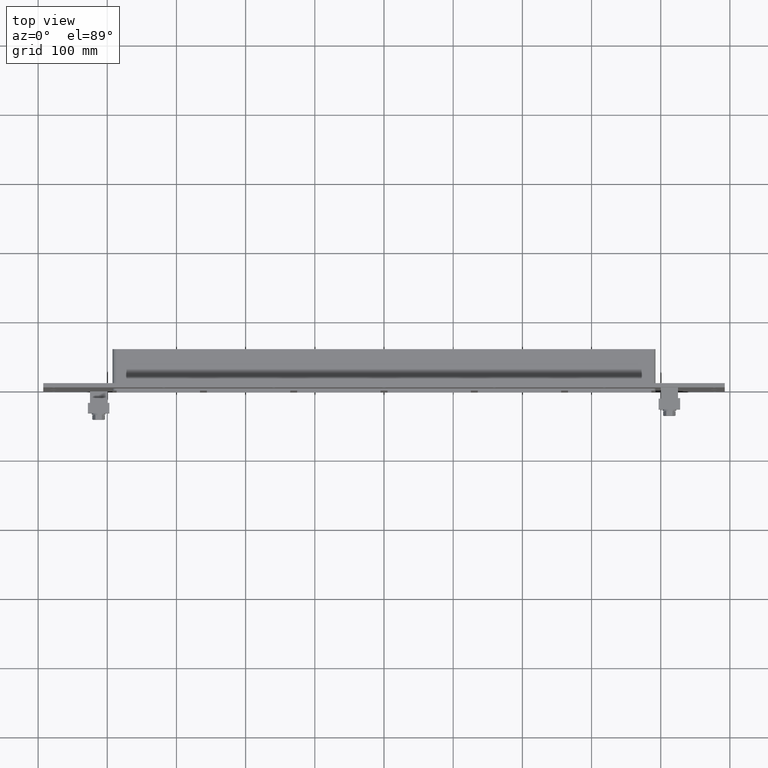
[diagram: clean part render]
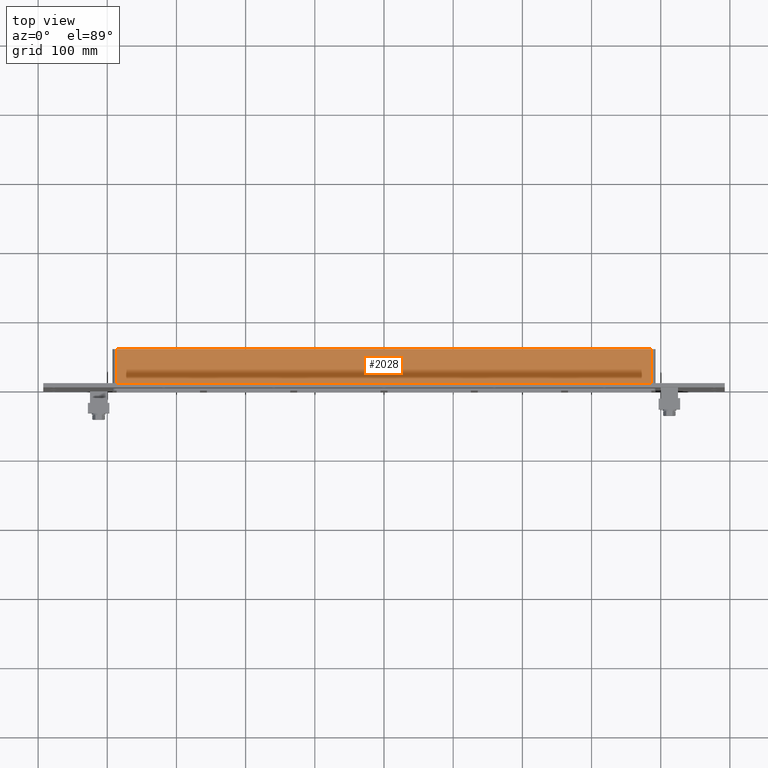
[diagram: same view with one face highlighted and labeled with its STEP entity id]
A machine part, top view. The second image highlights one B-rep face of the part: STEP entity #2028.
In plain terms, the highlighted planar face has unit normal (0, 0, 1).
Its self-contained STEP definition (entity closure, byte-faithful):
#1305=CARTESIAN_POINT('',(-386.50000000000006,6.000000000000001,85.750000000000028));
#1306=VERTEX_POINT('',#1305);
#1356=CARTESIAN_POINT('',(386.50000000000006,6.000000000000001,85.750000000000028));
#1357=VERTEX_POINT('',#1356);
#1365=CARTESIAN_POINT('',(-386.50000000000006,6.000000000000001,85.750000000000028));
#1366=DIRECTION('',(1.0,0.0,0.0));
#1367=VECTOR('',#1366,773.0);
#1368=LINE('',#1365,#1367);
#1369=EDGE_CURVE('',#1306,#1357,#1368,.T.);
#1986=CARTESIAN_POINT('',(-386.50000000000006,57.0,85.750000000000028));
#1987=VERTEX_POINT('',#1986);
#1988=CARTESIAN_POINT('',(-386.50000000000006,6.000000000000001,85.750000000000028));
#1989=DIRECTION('',(0.0,1.0,0.0));
#1990=VECTOR('',#1989,51.0);
#1991=LINE('',#1988,#1990);
#1992=EDGE_CURVE('',#1306,#1987,#1991,.T.);
#2005=CARTESIAN_POINT('',(-392.5,0.0,85.750000000000028));
#2006=DIRECTION('',(0.0,0.0,1.0));
#2007=DIRECTION('',(1.0,0.0,0.0));
#2008=AXIS2_PLACEMENT_3D('',#2005,#2006,#2007);
#2009=PLANE('',#2008);
#2010=ORIENTED_EDGE('',*,*,#1369,.T.);
#2011=CARTESIAN_POINT('',(386.50000000000006,57.0,85.750000000000028));
#2012=VERTEX_POINT('',#2011);
#2013=CARTESIAN_POINT('',(386.50000000000006,57.0,85.750000000000028));
#2014=DIRECTION('',(0.0,-1.0,0.0));
#2015=VECTOR('',#2014,51.0);
#2016=LINE('',#2013,#2015);
#2017=EDGE_CURVE('',#2012,#1357,#2016,.T.);
#2018=ORIENTED_EDGE('',*,*,#2017,.F.);
#2019=CARTESIAN_POINT('',(-386.50000000000006,57.0,85.750000000000028));
#2020=DIRECTION('',(1.0,0.0,0.0));
#2021=VECTOR('',#2020,773.0);
#2022=LINE('',#2019,#2021);
#2023=EDGE_CURVE('',#1987,#2012,#2022,.T.);
#2024=ORIENTED_EDGE('',*,*,#2023,.F.);
#2025=ORIENTED_EDGE('',*,*,#1992,.F.);
#2026=EDGE_LOOP('',(#2010,#2018,#2024,#2025));
#2027=FACE_OUTER_BOUND('',#2026,.T.);
#2028=ADVANCED_FACE('',(#2027),#2009,.T.);